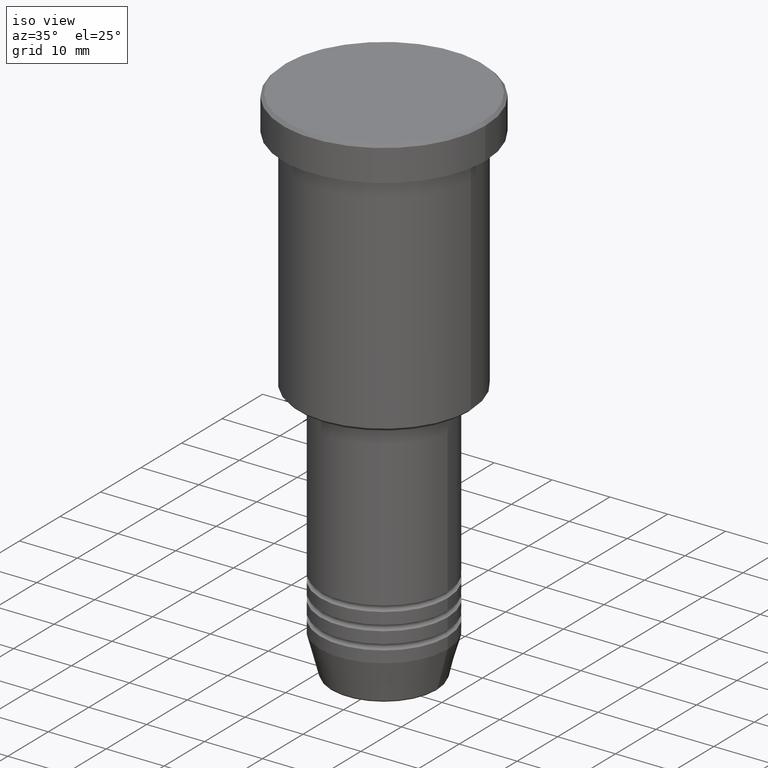
[diagram: clean part render]
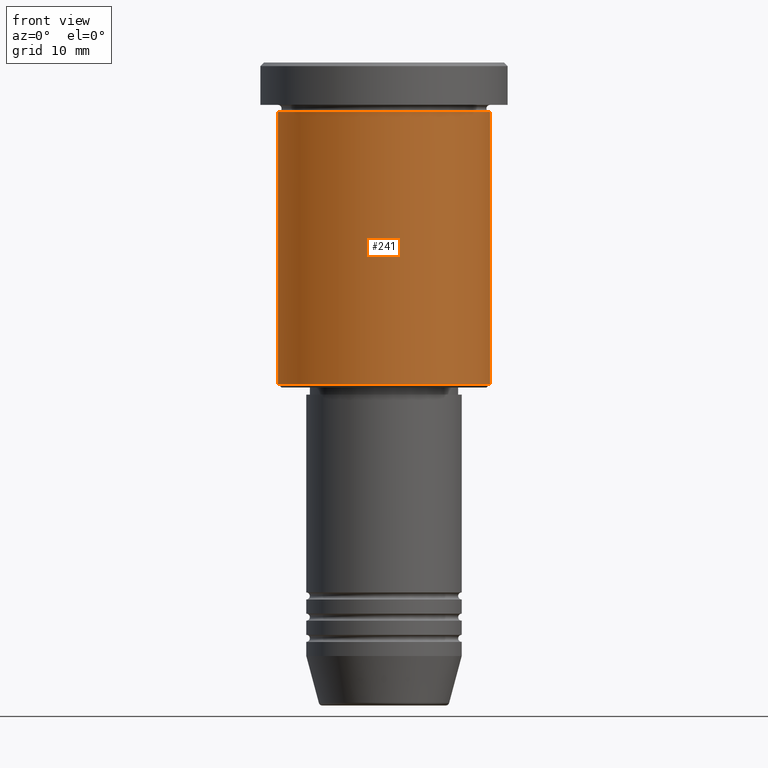
[diagram: tour spotlight — one face highlighted and labeled with its STEP entity id]
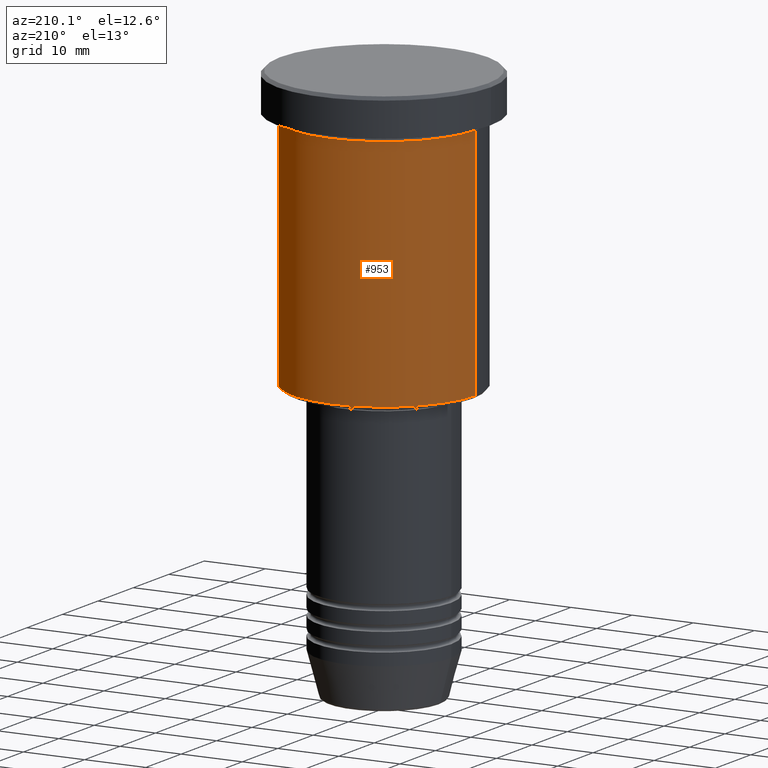
[diagram: tour spotlight — one face highlighted and labeled with its STEP entity id]
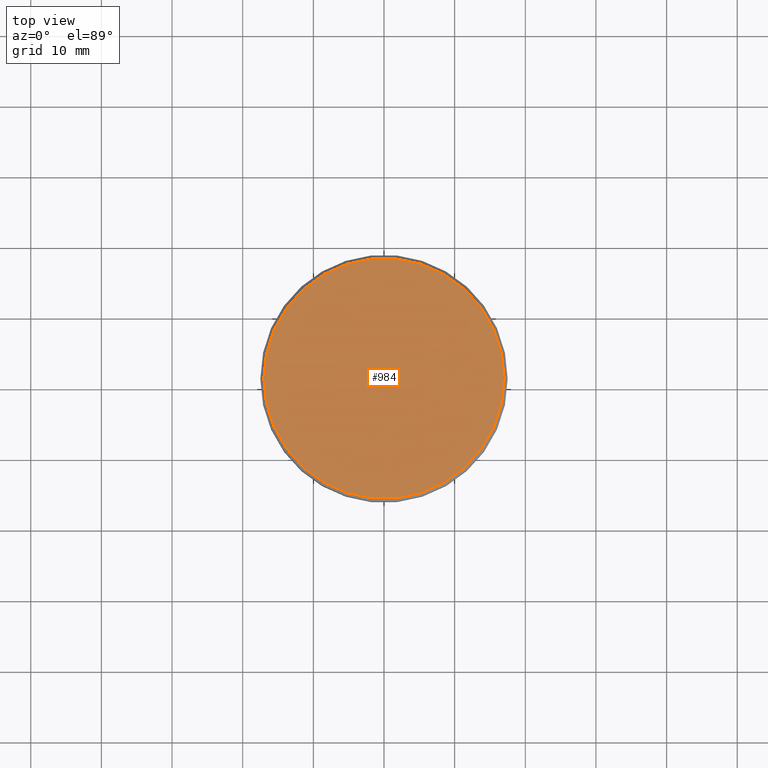
[diagram: tour spotlight — one face highlighted and labeled with its STEP entity id]
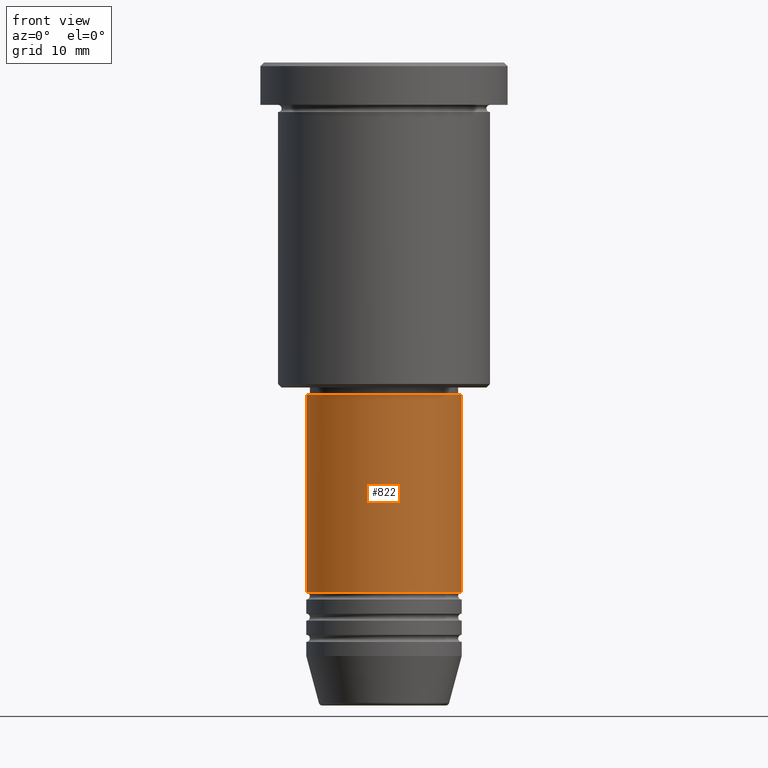
[diagram: tour spotlight — one face highlighted and labeled with its STEP entity id]
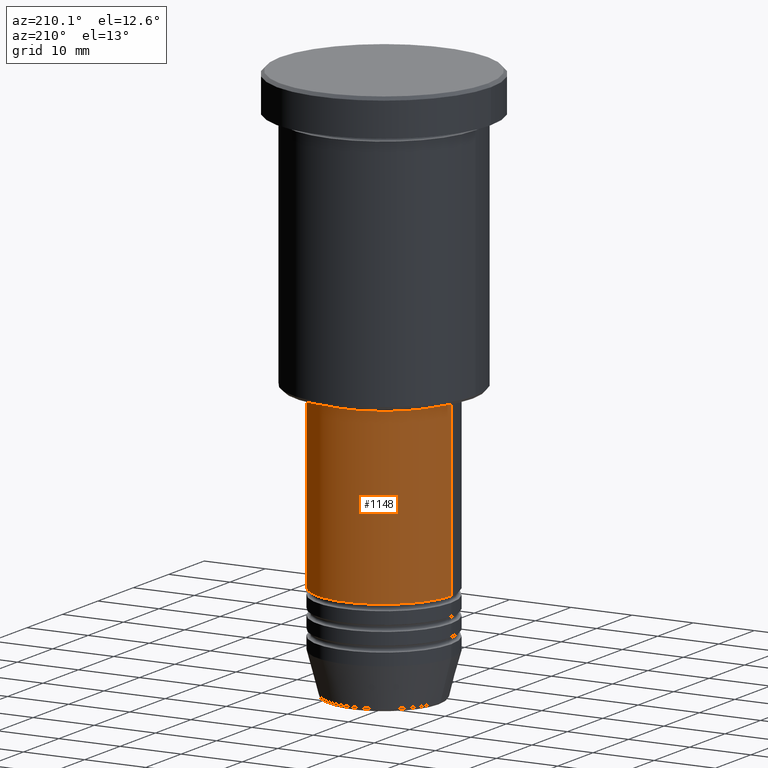
[diagram: tour spotlight — one face highlighted and labeled with its STEP entity id]
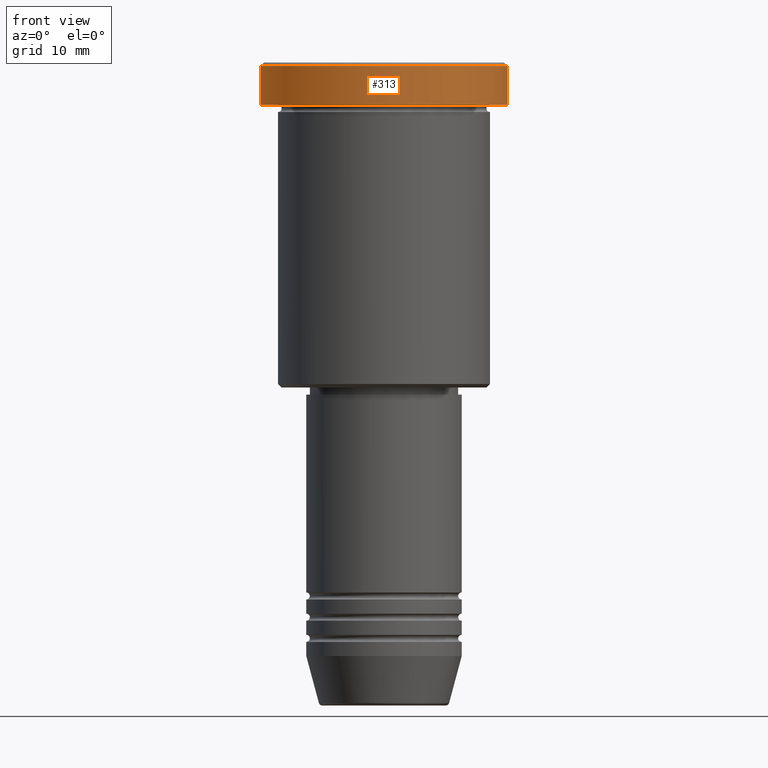
[diagram: tour spotlight — one face highlighted and labeled with its STEP entity id]
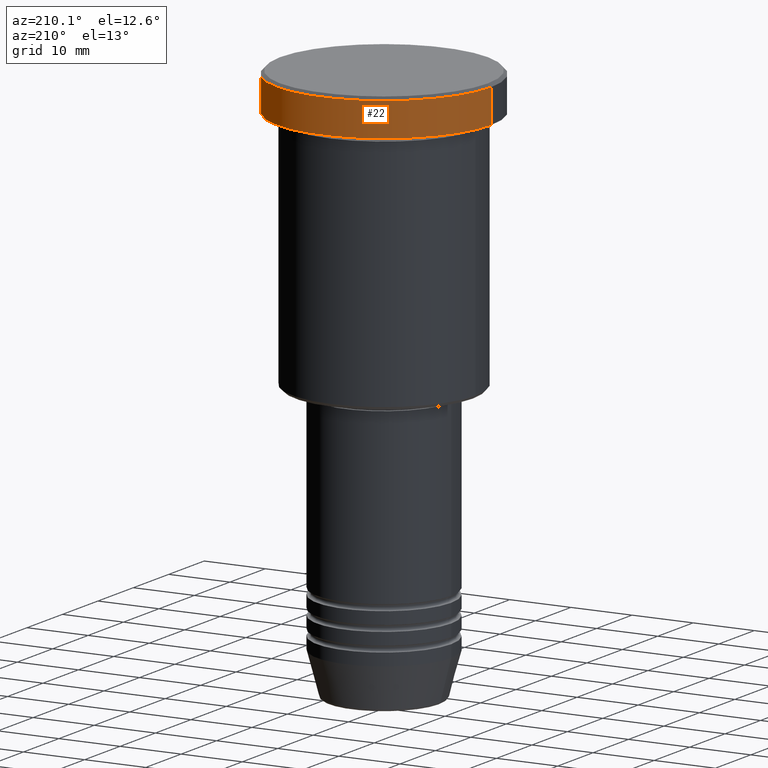
[diagram: tour spotlight — one face highlighted and labeled with its STEP entity id]
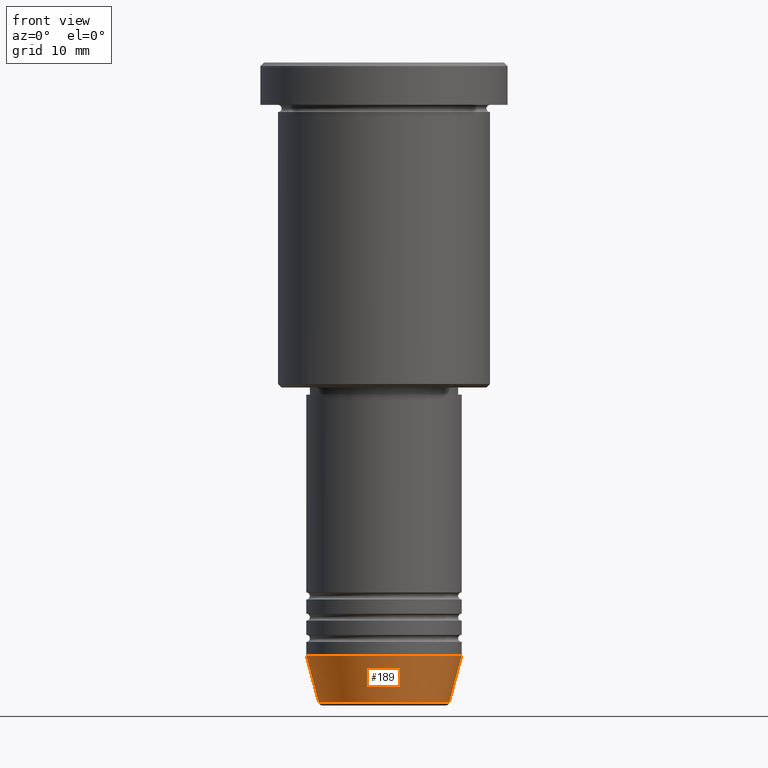
[diagram: tour spotlight — one face highlighted and labeled with its STEP entity id]
A machine part: a face-by-face anatomy tour. The part has 43 B-rep faces; the first image is the clean iso view, then the 8 largest visible faces are spotlighted one at a time (largest first), each with its STEP entity span.

Face 1 — front view, entity #241. In plain terms, the highlighted cylindrical surface (partial cylindrical patch) has radius 15 mm, axis along (-0, -0, 1).
Definition (entity closure, byte-faithful):
#15 = EDGE_CURVE ( 'NONE', #1042, #636, #150, .T. ) ;
#33 = CARTESIAN_POINT ( 'NONE',  ( -15.00000000000000000, 1.836970198721029589E-15, -6.999999999999995559 ) ) ;
#40 = VECTOR ( 'NONE', #126, 1000.000000000000000 ) ;
#126 = DIRECTION ( 'NONE',  ( -0.000000000000000000, -0.000000000000000000, 1.000000000000000000 ) ) ;
#150 = LINE ( 'NONE', #823, #284 ) ;
#213 = DIRECTION ( 'NONE',  ( -0.000000000000000000, -0.000000000000000000, 1.000000000000000000 ) ) ;
#233 = ORIENTED_EDGE ( 'NONE', *, *, #623, .T. ) ;
#241 = ADVANCED_FACE ( 'NONE', ( #740 ), #1040, .T. ) ;
#284 = VECTOR ( 'NONE', #1084, 1000.000000000000000 ) ;
#387 = AXIS2_PLACEMENT_3D ( 'NONE', #1136, #213, #689 ) ;
#411 = CIRCLE ( 'NONE', #1036, 15.00000000000000000 ) ;
#463 = DIRECTION ( 'NONE',  ( 1.000000000000000000, 0.000000000000000000, 0.000000000000000000 ) ) ;
#474 = DIRECTION ( 'NONE',  ( -0.000000000000000000, -0.000000000000000000, 1.000000000000000000 ) ) ;
#489 = CARTESIAN_POINT ( 'NONE',  ( 15.00000000000000000, 0.000000000000000000, -45.49999999999999289 ) ) ;
#528 = EDGE_LOOP ( 'NONE', ( #859, #560, #233, #730 ) ) ;
#547 = EDGE_CURVE ( 'NONE', #636, #1146, #1023, .T. ) ;
#560 = ORIENTED_EDGE ( 'NONE', *, *, #1067, .T. ) ;
#583 = CARTESIAN_POINT ( 'NONE',  ( 15.00000000000000000, 0.000000000000000000, -6.999999999999995559 ) ) ;
#591 = CARTESIAN_POINT ( 'NONE',  ( 15.00000000000000000, 0.000000000000000000, 0.000000000000000000 ) ) ;
#623 = EDGE_CURVE ( 'NONE', #718, #1146, #951, .T. ) ;
#636 = VERTEX_POINT ( 'NONE', #33 ) ;
#689 = DIRECTION ( 'NONE',  ( 1.000000000000000000, 0.000000000000000000, 0.000000000000000000 ) ) ;
#718 = VERTEX_POINT ( 'NONE', #489 ) ;
#730 = ORIENTED_EDGE ( 'NONE', *, *, #547, .F. ) ;
#740 = FACE_OUTER_BOUND ( 'NONE', #528, .T. ) ;
#823 = CARTESIAN_POINT ( 'NONE',  ( -15.00000000000000000, 1.836970198721029589E-15, 0.000000000000000000 ) ) ;
#842 = DIRECTION ( 'NONE',  ( -1.000000000000000000, 0.000000000000000000, 0.000000000000000000 ) ) ;
#859 = ORIENTED_EDGE ( 'NONE', *, *, #15, .F. ) ;
#922 = CARTESIAN_POINT ( 'NONE',  ( 0.000000000000000000, 0.000000000000000000, -6.999999999999995559 ) ) ;
#941 = CARTESIAN_POINT ( 'NONE',  ( -15.00000000000000000, 1.836970198721029589E-15, -45.49999999999999289 ) ) ;
#951 = LINE ( 'NONE', #591, #40 ) ;
#964 = AXIS2_PLACEMENT_3D ( 'NONE', #922, #1099, #463 ) ;
#1023 = CIRCLE ( 'NONE', #964, 15.00000000000000000 ) ;
#1036 = AXIS2_PLACEMENT_3D ( 'NONE', #1118, #474, #842 ) ;
#1040 = CYLINDRICAL_SURFACE ( 'NONE', #387, 15.00000000000000000 ) ;
#1042 = VERTEX_POINT ( 'NONE', #941 ) ;
#1067 = EDGE_CURVE ( 'NONE', #1042, #718, #411, .T. ) ;
#1084 = DIRECTION ( 'NONE',  ( -0.000000000000000000, -0.000000000000000000, 1.000000000000000000 ) ) ;
#1099 = DIRECTION ( 'NONE',  ( -0.000000000000000000, -0.000000000000000000, 1.000000000000000000 ) ) ;
#1118 = CARTESIAN_POINT ( 'NONE',  ( 0.000000000000000000, 0.000000000000000000, -45.49999999999999289 ) ) ;
#1136 = CARTESIAN_POINT ( 'NONE',  ( 0.000000000000000000, 0.000000000000000000, 0.000000000000000000 ) ) ;
#1146 = VERTEX_POINT ( 'NONE', #583 ) ;

Face 2 — auxiliary view, entity #953. In plain terms, the highlighted cylindrical surface (partial cylindrical patch) has radius 15 mm, axis along (-0, -0, 1).
Definition (entity closure, byte-faithful):
#15 = EDGE_CURVE ( 'NONE', #1042, #636, #150, .T. ) ;
#33 = CARTESIAN_POINT ( 'NONE',  ( -15.00000000000000000, 1.836970198721029589E-15, -6.999999999999995559 ) ) ;
#40 = VECTOR ( 'NONE', #126, 1000.000000000000000 ) ;
#118 = AXIS2_PLACEMENT_3D ( 'NONE', #724, #253, #1081 ) ;
#126 = DIRECTION ( 'NONE',  ( -0.000000000000000000, -0.000000000000000000, 1.000000000000000000 ) ) ;
#150 = LINE ( 'NONE', #823, #284 ) ;
#163 = CARTESIAN_POINT ( 'NONE',  ( 0.000000000000000000, 0.000000000000000000, -6.999999999999995559 ) ) ;
#195 = FACE_OUTER_BOUND ( 'NONE', #227, .T. ) ;
#227 = EDGE_LOOP ( 'NONE', ( #902, #737, #268, #440 ) ) ;
#253 = DIRECTION ( 'NONE',  ( -0.000000000000000000, -0.000000000000000000, 1.000000000000000000 ) ) ;
#268 = ORIENTED_EDGE ( 'NONE', *, *, #1165, .F. ) ;
#269 = CYLINDRICAL_SURFACE ( 'NONE', #392, 15.00000000000000000 ) ;
#284 = VECTOR ( 'NONE', #1084, 1000.000000000000000 ) ;
#326 = EDGE_CURVE ( 'NONE', #718, #1042, #1112, .T. ) ;
#392 = AXIS2_PLACEMENT_3D ( 'NONE', #911, #747, #568 ) ;
#433 = DIRECTION ( 'NONE',  ( -0.000000000000000000, -0.000000000000000000, 1.000000000000000000 ) ) ;
#440 = ORIENTED_EDGE ( 'NONE', *, *, #623, .F. ) ;
#489 = CARTESIAN_POINT ( 'NONE',  ( 15.00000000000000000, 0.000000000000000000, -45.49999999999999289 ) ) ;
#533 = DIRECTION ( 'NONE',  ( 1.000000000000000000, 0.000000000000000000, 0.000000000000000000 ) ) ;
#568 = DIRECTION ( 'NONE',  ( 1.000000000000000000, 0.000000000000000000, 0.000000000000000000 ) ) ;
#583 = CARTESIAN_POINT ( 'NONE',  ( 15.00000000000000000, 0.000000000000000000, -6.999999999999995559 ) ) ;
#591 = CARTESIAN_POINT ( 'NONE',  ( 15.00000000000000000, 0.000000000000000000, 0.000000000000000000 ) ) ;
#623 = EDGE_CURVE ( 'NONE', #718, #1146, #951, .T. ) ;
#636 = VERTEX_POINT ( 'NONE', #33 ) ;
#718 = VERTEX_POINT ( 'NONE', #489 ) ;
#724 = CARTESIAN_POINT ( 'NONE',  ( 0.000000000000000000, 0.000000000000000000, -45.49999999999999289 ) ) ;
#737 = ORIENTED_EDGE ( 'NONE', *, *, #15, .T. ) ;
#746 = AXIS2_PLACEMENT_3D ( 'NONE', #163, #433, #533 ) ;
#747 = DIRECTION ( 'NONE',  ( -0.000000000000000000, -0.000000000000000000, 1.000000000000000000 ) ) ;
#823 = CARTESIAN_POINT ( 'NONE',  ( -15.00000000000000000, 1.836970198721029589E-15, 0.000000000000000000 ) ) ;
#878 = CIRCLE ( 'NONE', #746, 15.00000000000000000 ) ;
#902 = ORIENTED_EDGE ( 'NONE', *, *, #326, .T. ) ;
#911 = CARTESIAN_POINT ( 'NONE',  ( 0.000000000000000000, 0.000000000000000000, 0.000000000000000000 ) ) ;
#941 = CARTESIAN_POINT ( 'NONE',  ( -15.00000000000000000, 1.836970198721029589E-15, -45.49999999999999289 ) ) ;
#951 = LINE ( 'NONE', #591, #40 ) ;
#953 = ADVANCED_FACE ( 'NONE', ( #195 ), #269, .T. ) ;
#1042 = VERTEX_POINT ( 'NONE', #941 ) ;
#1081 = DIRECTION ( 'NONE',  ( -1.000000000000000000, 0.000000000000000000, 0.000000000000000000 ) ) ;
#1084 = DIRECTION ( 'NONE',  ( -0.000000000000000000, -0.000000000000000000, 1.000000000000000000 ) ) ;
#1112 = CIRCLE ( 'NONE', #118, 15.00000000000000000 ) ;
#1146 = VERTEX_POINT ( 'NONE', #583 ) ;
#1165 = EDGE_CURVE ( 'NONE', #1146, #636, #878, .T. ) ;

Face 3 — top view, entity #984. In plain terms, the highlighted planar face has unit normal (0, -0, 1).
Definition (entity closure, byte-faithful):
#9 = AXIS2_PLACEMENT_3D ( 'NONE', #293, #16, #571 ) ;
#13 = PLANE ( 'NONE',  #274 ) ;
#16 = DIRECTION ( 'NONE',  ( -0.000000000000000000, -0.000000000000000000, 1.000000000000000000 ) ) ;
#53 = EDGE_CURVE ( 'NONE', #490, #703, #931, .T. ) ;
#55 = CARTESIAN_POINT ( 'NONE',  ( 0.000000000000000000, 0.000000000000000000, 0.000000000000000000 ) ) ;
#100 = DIRECTION ( 'NONE',  ( 0.000000000000000000, -0.000000000000000000, 1.000000000000000000 ) ) ;
#112 = CARTESIAN_POINT ( 'NONE',  ( 17.00000000000000000, 2.112515728529184067E-15, 0.000000000000000000 ) ) ;
#183 = AXIS2_PLACEMENT_3D ( 'NONE', #55, #799, #1172 ) ;
#190 = FACE_OUTER_BOUND ( 'NONE', #214, .T. ) ;
#214 = EDGE_LOOP ( 'NONE', ( #673, #1171 ) ) ;
#274 = AXIS2_PLACEMENT_3D ( 'NONE', #561, #100, #645 ) ;
#293 = CARTESIAN_POINT ( 'NONE',  ( 0.000000000000000000, 0.000000000000000000, 0.000000000000000000 ) ) ;
#490 = VERTEX_POINT ( 'NONE', #1182 ) ;
#561 = CARTESIAN_POINT ( 'NONE',  ( 0.000000000000000000, 0.000000000000000000, 0.000000000000000000 ) ) ;
#571 = DIRECTION ( 'NONE',  ( 1.000000000000000000, 0.000000000000000000, 0.000000000000000000 ) ) ;
#645 = DIRECTION ( 'NONE',  ( 1.000000000000000000, 0.000000000000000000, 0.000000000000000000 ) ) ;
#673 = ORIENTED_EDGE ( 'NONE', *, *, #53, .T. ) ;
#703 = VERTEX_POINT ( 'NONE', #112 ) ;
#799 = DIRECTION ( 'NONE',  ( -0.000000000000000000, -0.000000000000000000, 1.000000000000000000 ) ) ;
#877 = CIRCLE ( 'NONE', #9, 17.00000000000000000 ) ;
#931 = CIRCLE ( 'NONE', #183, 17.00000000000000000 ) ;
#984 = ADVANCED_FACE ( 'NONE', ( #190 ), #13, .T. ) ;
#1100 = EDGE_CURVE ( 'NONE', #703, #490, #877, .T. ) ;
#1171 = ORIENTED_EDGE ( 'NONE', *, *, #1100, .T. ) ;
#1172 = DIRECTION ( 'NONE',  ( 1.000000000000000000, 0.000000000000000000, 0.000000000000000000 ) ) ;
#1182 = CARTESIAN_POINT ( 'NONE',  ( -17.00000000000000000, 0.000000000000000000, 0.000000000000000000 ) ) ;

Face 4 — front view, entity #822. In plain terms, the highlighted cylindrical surface (partial cylindrical patch) has radius 11 mm, axis along (-0, -0, 1).
Definition (entity closure, byte-faithful):
#2 = LINE ( 'NONE', #106, #605 ) ;
#24 = VECTOR ( 'NONE', #890, 1000.000000000000000 ) ;
#51 = DIRECTION ( 'NONE',  ( -0.000000000000000000, -0.000000000000000000, 1.000000000000000000 ) ) ;
#71 = LINE ( 'NONE', #1057, #24 ) ;
#106 = CARTESIAN_POINT ( 'NONE',  ( 11.00000000000000000, 0.000000000000000000, 0.000000000000000000 ) ) ;
#156 = DIRECTION ( 'NONE',  ( 1.000000000000000000, 0.000000000000000000, 0.000000000000000000 ) ) ;
#157 = EDGE_LOOP ( 'NONE', ( #564, #252, #860, #962 ) ) ;
#187 = DIRECTION ( 'NONE',  ( 1.000000000000000000, 0.000000000000000000, 0.000000000000000000 ) ) ;
#221 = DIRECTION ( 'NONE',  ( -0.000000000000000000, -0.000000000000000000, 1.000000000000000000 ) ) ;
#234 = CARTESIAN_POINT ( 'NONE',  ( -11.00000000000000000, 1.347111479062088405E-15, -46.99999999999997158 ) ) ;
#249 = VERTEX_POINT ( 'NONE', #418 ) ;
#252 = ORIENTED_EDGE ( 'NONE', *, *, #989, .T. ) ;
#359 = DIRECTION ( 'NONE',  ( -0.000000000000000000, -0.000000000000000000, 1.000000000000000000 ) ) ;
#378 = VERTEX_POINT ( 'NONE', #234 ) ;
#380 = CARTESIAN_POINT ( 'NONE',  ( 0.000000000000000000, 0.000000000000000000, -74.99999999999997158 ) ) ;
#418 = CARTESIAN_POINT ( 'NONE',  ( 11.00000000000000000, 0.000000000000000000, -46.99999999999997158 ) ) ;
#550 = AXIS2_PLACEMENT_3D ( 'NONE', #1017, #926, #187 ) ;
#564 = ORIENTED_EDGE ( 'NONE', *, *, #810, .F. ) ;
#567 = AXIS2_PLACEMENT_3D ( 'NONE', #380, #359, #729 ) ;
#605 = VECTOR ( 'NONE', #221, 1000.000000000000000 ) ;
#617 = CARTESIAN_POINT ( 'NONE',  ( 0.000000000000000000, 0.000000000000000000, 0.000000000000000000 ) ) ;
#630 = CIRCLE ( 'NONE', #567, 11.00000000000000000 ) ;
#641 = VERTEX_POINT ( 'NONE', #957 ) ;
#677 = VERTEX_POINT ( 'NONE', #1135 ) ;
#725 = CIRCLE ( 'NONE', #550, 11.00000000000000000 ) ;
#729 = DIRECTION ( 'NONE',  ( 1.000000000000000000, 0.000000000000000000, 0.000000000000000000 ) ) ;
#810 = EDGE_CURVE ( 'NONE', #641, #378, #71, .T. ) ;
#813 = CYLINDRICAL_SURFACE ( 'NONE', #821, 11.00000000000000000 ) ;
#821 = AXIS2_PLACEMENT_3D ( 'NONE', #617, #51, #156 ) ;
#822 = ADVANCED_FACE ( 'NONE', ( #884 ), #813, .T. ) ;
#860 = ORIENTED_EDGE ( 'NONE', *, *, #1015, .T. ) ;
#884 = FACE_OUTER_BOUND ( 'NONE', #157, .T. ) ;
#890 = DIRECTION ( 'NONE',  ( -0.000000000000000000, -0.000000000000000000, 1.000000000000000000 ) ) ;
#926 = DIRECTION ( 'NONE',  ( -0.000000000000000000, -0.000000000000000000, 1.000000000000000000 ) ) ;
#933 = EDGE_CURVE ( 'NONE', #378, #249, #725, .T. ) ;
#957 = CARTESIAN_POINT ( 'NONE',  ( -11.00000000000000000, 1.347111479062088405E-15, -74.99999999999997158 ) ) ;
#962 = ORIENTED_EDGE ( 'NONE', *, *, #933, .F. ) ;
#989 = EDGE_CURVE ( 'NONE', #641, #677, #630, .T. ) ;
#1015 = EDGE_CURVE ( 'NONE', #677, #249, #2, .T. ) ;
#1017 = CARTESIAN_POINT ( 'NONE',  ( 0.000000000000000000, 0.000000000000000000, -46.99999999999997158 ) ) ;
#1057 = CARTESIAN_POINT ( 'NONE',  ( -11.00000000000000000, 1.347111479062088405E-15, 0.000000000000000000 ) ) ;
#1135 = CARTESIAN_POINT ( 'NONE',  ( 11.00000000000000000, 0.000000000000000000, -74.99999999999997158 ) ) ;

Face 5 — auxiliary view, entity #1148. In plain terms, the highlighted cylindrical surface (partial cylindrical patch) has radius 11 mm, axis along (-0, -0, 1).
Definition (entity closure, byte-faithful):
#2 = LINE ( 'NONE', #106, #605 ) ;
#21 = AXIS2_PLACEMENT_3D ( 'NONE', #1111, #288, #956 ) ;
#24 = VECTOR ( 'NONE', #890, 1000.000000000000000 ) ;
#25 = ORIENTED_EDGE ( 'NONE', *, *, #1015, .F. ) ;
#70 = DIRECTION ( 'NONE',  ( -0.000000000000000000, -0.000000000000000000, 1.000000000000000000 ) ) ;
#71 = LINE ( 'NONE', #1057, #24 ) ;
#106 = CARTESIAN_POINT ( 'NONE',  ( 11.00000000000000000, 0.000000000000000000, 0.000000000000000000 ) ) ;
#138 = CIRCLE ( 'NONE', #21, 11.00000000000000000 ) ;
#169 = EDGE_CURVE ( 'NONE', #677, #641, #138, .T. ) ;
#177 = ORIENTED_EDGE ( 'NONE', *, *, #810, .T. ) ;
#221 = DIRECTION ( 'NONE',  ( -0.000000000000000000, -0.000000000000000000, 1.000000000000000000 ) ) ;
#228 = DIRECTION ( 'NONE',  ( 1.000000000000000000, 0.000000000000000000, 0.000000000000000000 ) ) ;
#234 = CARTESIAN_POINT ( 'NONE',  ( -11.00000000000000000, 1.347111479062088405E-15, -46.99999999999997158 ) ) ;
#249 = VERTEX_POINT ( 'NONE', #418 ) ;
#260 = EDGE_CURVE ( 'NONE', #249, #378, #329, .T. ) ;
#288 = DIRECTION ( 'NONE',  ( -0.000000000000000000, -0.000000000000000000, 1.000000000000000000 ) ) ;
#305 = FACE_OUTER_BOUND ( 'NONE', #594, .T. ) ;
#322 = CARTESIAN_POINT ( 'NONE',  ( 0.000000000000000000, 0.000000000000000000, -46.99999999999997158 ) ) ;
#329 = CIRCLE ( 'NONE', #483, 11.00000000000000000 ) ;
#366 = DIRECTION ( 'NONE',  ( -0.000000000000000000, -0.000000000000000000, 1.000000000000000000 ) ) ;
#378 = VERTEX_POINT ( 'NONE', #234 ) ;
#418 = CARTESIAN_POINT ( 'NONE',  ( 11.00000000000000000, 0.000000000000000000, -46.99999999999997158 ) ) ;
#454 = DIRECTION ( 'NONE',  ( 1.000000000000000000, 0.000000000000000000, 0.000000000000000000 ) ) ;
#483 = AXIS2_PLACEMENT_3D ( 'NONE', #322, #366, #454 ) ;
#589 = CYLINDRICAL_SURFACE ( 'NONE', #701, 11.00000000000000000 ) ;
#594 = EDGE_LOOP ( 'NONE', ( #871, #177, #1087, #25 ) ) ;
#605 = VECTOR ( 'NONE', #221, 1000.000000000000000 ) ;
#641 = VERTEX_POINT ( 'NONE', #957 ) ;
#677 = VERTEX_POINT ( 'NONE', #1135 ) ;
#701 = AXIS2_PLACEMENT_3D ( 'NONE', #954, #70, #228 ) ;
#810 = EDGE_CURVE ( 'NONE', #641, #378, #71, .T. ) ;
#871 = ORIENTED_EDGE ( 'NONE', *, *, #169, .T. ) ;
#890 = DIRECTION ( 'NONE',  ( -0.000000000000000000, -0.000000000000000000, 1.000000000000000000 ) ) ;
#954 = CARTESIAN_POINT ( 'NONE',  ( 0.000000000000000000, 0.000000000000000000, 0.000000000000000000 ) ) ;
#956 = DIRECTION ( 'NONE',  ( 1.000000000000000000, 0.000000000000000000, 0.000000000000000000 ) ) ;
#957 = CARTESIAN_POINT ( 'NONE',  ( -11.00000000000000000, 1.347111479062088405E-15, -74.99999999999997158 ) ) ;
#1015 = EDGE_CURVE ( 'NONE', #677, #249, #2, .T. ) ;
#1057 = CARTESIAN_POINT ( 'NONE',  ( -11.00000000000000000, 1.347111479062088405E-15, 0.000000000000000000 ) ) ;
#1087 = ORIENTED_EDGE ( 'NONE', *, *, #260, .F. ) ;
#1111 = CARTESIAN_POINT ( 'NONE',  ( 0.000000000000000000, 0.000000000000000000, -74.99999999999997158 ) ) ;
#1135 = CARTESIAN_POINT ( 'NONE',  ( 11.00000000000000000, 0.000000000000000000, -74.99999999999997158 ) ) ;
#1148 = ADVANCED_FACE ( 'NONE', ( #305 ), #589, .T. ) ;

Face 6 — front view, entity #313. In plain terms, the highlighted cylindrical surface (partial cylindrical patch) has radius 17.5 mm, axis along (-0, -0, 1).
Definition (entity closure, byte-faithful):
#52 = DIRECTION ( 'NONE',  ( 1.000000000000000000, 0.000000000000000000, 0.000000000000000000 ) ) ;
#101 = VECTOR ( 'NONE', #335, 1000.000000000000000 ) ;
#121 = ORIENTED_EDGE ( 'NONE', *, *, #572, .F. ) ;
#154 = CARTESIAN_POINT ( 'NONE',  ( 0.000000000000000000, 0.000000000000000000, -0.5000000000000142109 ) ) ;
#166 = CARTESIAN_POINT ( 'NONE',  ( 0.000000000000000000, 0.000000000000000000, 0.000000000000000000 ) ) ;
#205 = CARTESIAN_POINT ( 'NONE',  ( -17.50000000000000000, 2.143131898507868248E-15, 0.000000000000000000 ) ) ;
#216 = VERTEX_POINT ( 'NONE', #830 ) ;
#297 = ORIENTED_EDGE ( 'NONE', *, *, #1035, .T. ) ;
#298 = DIRECTION ( 'NONE',  ( -0.000000000000000000, -0.000000000000000000, 1.000000000000000000 ) ) ;
#313 = ADVANCED_FACE ( 'NONE', ( #709 ), #344, .T. ) ;
#335 = DIRECTION ( 'NONE',  ( -0.000000000000000000, -0.000000000000000000, 1.000000000000000000 ) ) ;
#344 = CYLINDRICAL_SURFACE ( 'NONE', #1152, 17.50000000000000000 ) ;
#410 = EDGE_CURVE ( 'NONE', #696, #639, #1129, .T. ) ;
#449 = ORIENTED_EDGE ( 'NONE', *, *, #410, .T. ) ;
#522 = DIRECTION ( 'NONE',  ( 0.000000000000000000, 0.000000000000000000, -1.000000000000000000 ) ) ;
#525 = CARTESIAN_POINT ( 'NONE',  ( 17.50000000000000000, 0.000000000000000000, 0.000000000000000000 ) ) ;
#572 = EDGE_CURVE ( 'NONE', #216, #639, #1102, .T. ) ;
#581 = EDGE_LOOP ( 'NONE', ( #121, #297, #674, #449 ) ) ;
#603 = CARTESIAN_POINT ( 'NONE',  ( 17.50000000000000000, 0.000000000000000000, -5.999999999999995559 ) ) ;
#626 = AXIS2_PLACEMENT_3D ( 'NONE', #154, #522, #891 ) ;
#639 = VERTEX_POINT ( 'NONE', #1113 ) ;
#674 = ORIENTED_EDGE ( 'NONE', *, *, #751, .T. ) ;
#696 = VERTEX_POINT ( 'NONE', #1027 ) ;
#709 = FACE_OUTER_BOUND ( 'NONE', #581, .T. ) ;
#751 = EDGE_CURVE ( 'NONE', #797, #696, #796, .T. ) ;
#783 = CARTESIAN_POINT ( 'NONE',  ( 0.000000000000000000, 0.000000000000000000, -5.999999999999995559 ) ) ;
#796 = LINE ( 'NONE', #525, #101 ) ;
#797 = VERTEX_POINT ( 'NONE', #603 ) ;
#830 = CARTESIAN_POINT ( 'NONE',  ( -17.50000000000000000, 2.143131898507868248E-15, -5.999999999999995559 ) ) ;
#858 = DIRECTION ( 'NONE',  ( -0.000000000000000000, -0.000000000000000000, 1.000000000000000000 ) ) ;
#891 = DIRECTION ( 'NONE',  ( 1.000000000000000000, 0.000000000000000000, 0.000000000000000000 ) ) ;
#970 = DIRECTION ( 'NONE',  ( -0.000000000000000000, -0.000000000000000000, 1.000000000000000000 ) ) ;
#986 = CIRCLE ( 'NONE', #1053, 17.50000000000000000 ) ;
#1027 = CARTESIAN_POINT ( 'NONE',  ( 17.50000000000000000, 0.000000000000000000, -0.5000000000000142109 ) ) ;
#1035 = EDGE_CURVE ( 'NONE', #216, #797, #986, .T. ) ;
#1043 = DIRECTION ( 'NONE',  ( 1.000000000000000000, 0.000000000000000000, 0.000000000000000000 ) ) ;
#1052 = VECTOR ( 'NONE', #858, 1000.000000000000000 ) ;
#1053 = AXIS2_PLACEMENT_3D ( 'NONE', #783, #298, #1043 ) ;
#1102 = LINE ( 'NONE', #205, #1052 ) ;
#1113 = CARTESIAN_POINT ( 'NONE',  ( -17.50000000000000000, 2.143131898507868248E-15, -0.5000000000000142109 ) ) ;
#1129 = CIRCLE ( 'NONE', #626, 17.50000000000000000 ) ;
#1152 = AXIS2_PLACEMENT_3D ( 'NONE', #166, #970, #52 ) ;

Face 7 — auxiliary view, entity #22. In plain terms, the highlighted cylindrical surface (partial cylindrical patch) has radius 17.5 mm, axis along (-0, -0, 1).
Definition (entity closure, byte-faithful):
#12 = DIRECTION ( 'NONE',  ( 0.000000000000000000, 0.000000000000000000, -1.000000000000000000 ) ) ;
#22 = ADVANCED_FACE ( 'NONE', ( #1075 ), #168, .T. ) ;
#101 = VECTOR ( 'NONE', #335, 1000.000000000000000 ) ;
#168 = CYLINDRICAL_SURFACE ( 'NONE', #290, 17.50000000000000000 ) ;
#205 = CARTESIAN_POINT ( 'NONE',  ( -17.50000000000000000, 2.143131898507868248E-15, 0.000000000000000000 ) ) ;
#216 = VERTEX_POINT ( 'NONE', #830 ) ;
#229 = EDGE_CURVE ( 'NONE', #639, #696, #285, .T. ) ;
#232 = AXIS2_PLACEMENT_3D ( 'NONE', #1108, #12, #552 ) ;
#257 = CARTESIAN_POINT ( 'NONE',  ( 0.000000000000000000, 0.000000000000000000, 0.000000000000000000 ) ) ;
#259 = DIRECTION ( 'NONE',  ( 1.000000000000000000, 0.000000000000000000, 0.000000000000000000 ) ) ;
#285 = CIRCLE ( 'NONE', #232, 17.50000000000000000 ) ;
#290 = AXIS2_PLACEMENT_3D ( 'NONE', #257, #633, #905 ) ;
#324 = EDGE_LOOP ( 'NONE', ( #959, #958, #914, #691 ) ) ;
#335 = DIRECTION ( 'NONE',  ( -0.000000000000000000, -0.000000000000000000, 1.000000000000000000 ) ) ;
#397 = EDGE_CURVE ( 'NONE', #797, #216, #1173, .T. ) ;
#428 = AXIS2_PLACEMENT_3D ( 'NONE', #517, #614, #259 ) ;
#517 = CARTESIAN_POINT ( 'NONE',  ( 0.000000000000000000, 0.000000000000000000, -5.999999999999995559 ) ) ;
#525 = CARTESIAN_POINT ( 'NONE',  ( 17.50000000000000000, 0.000000000000000000, 0.000000000000000000 ) ) ;
#552 = DIRECTION ( 'NONE',  ( 1.000000000000000000, 0.000000000000000000, 0.000000000000000000 ) ) ;
#572 = EDGE_CURVE ( 'NONE', #216, #639, #1102, .T. ) ;
#603 = CARTESIAN_POINT ( 'NONE',  ( 17.50000000000000000, 0.000000000000000000, -5.999999999999995559 ) ) ;
#614 = DIRECTION ( 'NONE',  ( -0.000000000000000000, -0.000000000000000000, 1.000000000000000000 ) ) ;
#633 = DIRECTION ( 'NONE',  ( -0.000000000000000000, -0.000000000000000000, 1.000000000000000000 ) ) ;
#639 = VERTEX_POINT ( 'NONE', #1113 ) ;
#691 = ORIENTED_EDGE ( 'NONE', *, *, #751, .F. ) ;
#696 = VERTEX_POINT ( 'NONE', #1027 ) ;
#751 = EDGE_CURVE ( 'NONE', #797, #696, #796, .T. ) ;
#796 = LINE ( 'NONE', #525, #101 ) ;
#797 = VERTEX_POINT ( 'NONE', #603 ) ;
#830 = CARTESIAN_POINT ( 'NONE',  ( -17.50000000000000000, 2.143131898507868248E-15, -5.999999999999995559 ) ) ;
#858 = DIRECTION ( 'NONE',  ( -0.000000000000000000, -0.000000000000000000, 1.000000000000000000 ) ) ;
#905 = DIRECTION ( 'NONE',  ( 1.000000000000000000, 0.000000000000000000, 0.000000000000000000 ) ) ;
#914 = ORIENTED_EDGE ( 'NONE', *, *, #229, .T. ) ;
#958 = ORIENTED_EDGE ( 'NONE', *, *, #572, .T. ) ;
#959 = ORIENTED_EDGE ( 'NONE', *, *, #397, .T. ) ;
#1027 = CARTESIAN_POINT ( 'NONE',  ( 17.50000000000000000, 0.000000000000000000, -0.5000000000000142109 ) ) ;
#1052 = VECTOR ( 'NONE', #858, 1000.000000000000000 ) ;
#1075 = FACE_OUTER_BOUND ( 'NONE', #324, .T. ) ;
#1102 = LINE ( 'NONE', #205, #1052 ) ;
#1108 = CARTESIAN_POINT ( 'NONE',  ( 0.000000000000000000, 0.000000000000000000, -0.5000000000000142109 ) ) ;
#1113 = CARTESIAN_POINT ( 'NONE',  ( -17.50000000000000000, 2.143131898507868248E-15, -0.5000000000000142109 ) ) ;
#1173 = CIRCLE ( 'NONE', #428, 17.50000000000000000 ) ;

Face 8 — front view, entity #189. In plain terms, the highlighted conical surface has half-angle 15 deg.
Definition (entity closure, byte-faithful):
#5 = AXIS2_PLACEMENT_3D ( 'NONE', #171, #886, #541 ) ;
#77 = ORIENTED_EDGE ( 'NONE', *, *, #401, .F. ) ;
#171 = CARTESIAN_POINT ( 'NONE',  ( 0.000000000000000000, 0.000000000000000000, -83.99999999999998579 ) ) ;
#189 = ADVANCED_FACE ( 'NONE', ( #578 ), #927, .T. ) ;
#240 = CARTESIAN_POINT ( 'NONE',  ( -9.223655072137187716, 1.238341722557647004E-15, -90.62940952255124216 ) ) ;
#303 = EDGE_LOOP ( 'NONE', ( #978, #981, #892, #77 ) ) ;
#336 = EDGE_CURVE ( 'NONE', #790, #786, #601, .T. ) ;
#372 = LINE ( 'NONE', #472, #389 ) ;
#389 = VECTOR ( 'NONE', #839, 1000.000000000000000 ) ;
#394 = DIRECTION ( 'NONE',  ( -0.000000000000000000, -0.000000000000000000, 1.000000000000000000 ) ) ;
#401 = EDGE_CURVE ( 'NONE', #815, #806, #526, .T. ) ;
#435 = CARTESIAN_POINT ( 'NONE',  ( 9.223655072137187716, 0.000000000000000000, -90.62940952255124216 ) ) ;
#439 = CARTESIAN_POINT ( 'NONE',  ( -11.00000000000000000, 1.347111479062088405E-15, -83.99999999999998579 ) ) ;
#445 = CARTESIAN_POINT ( 'NONE',  ( 11.00000000000000000, 0.000000000000000000, -83.99999999999998579 ) ) ;
#472 = CARTESIAN_POINT ( 'NONE',  ( -11.00000000000000000, 1.347111479062088405E-15, -83.99999999999998579 ) ) ;
#481 = EDGE_CURVE ( 'NONE', #790, #815, #372, .T. ) ;
#526 = CIRCLE ( 'NONE', #5, 11.00000000000000000 ) ;
#541 = DIRECTION ( 'NONE',  ( 1.000000000000000000, 0.000000000000000000, 0.000000000000000000 ) ) ;
#578 = FACE_OUTER_BOUND ( 'NONE', #303, .T. ) ;
#601 = CIRCLE ( 'NONE', #742, 9.223655072137187716 ) ;
#608 = DIRECTION ( 'NONE',  ( 1.000000000000000000, 0.000000000000000000, 0.000000000000000000 ) ) ;
#657 = LINE ( 'NONE', #445, #803 ) ;
#697 = AXIS2_PLACEMENT_3D ( 'NONE', #857, #394, #862 ) ;
#716 = CARTESIAN_POINT ( 'NONE',  ( 0.000000000000000000, 0.000000000000000000, -90.62940952255124216 ) ) ;
#742 = AXIS2_PLACEMENT_3D ( 'NONE', #716, #992, #608 ) ;
#786 = VERTEX_POINT ( 'NONE', #435 ) ;
#790 = VERTEX_POINT ( 'NONE', #240 ) ;
#803 = VECTOR ( 'NONE', #1177, 1000.000000000000000 ) ;
#806 = VERTEX_POINT ( 'NONE', #901 ) ;
#815 = VERTEX_POINT ( 'NONE', #439 ) ;
#839 = DIRECTION ( 'NONE',  ( -0.2588190451025213501, 3.169619151431772337E-17, 0.9659258262890680902 ) ) ;
#857 = CARTESIAN_POINT ( 'NONE',  ( 0.000000000000000000, 0.000000000000000000, -83.99999999999998579 ) ) ;
#862 = DIRECTION ( 'NONE',  ( 1.000000000000000000, 0.000000000000000000, 0.000000000000000000 ) ) ;
#886 = DIRECTION ( 'NONE',  ( -0.000000000000000000, -0.000000000000000000, 1.000000000000000000 ) ) ;
#892 = ORIENTED_EDGE ( 'NONE', *, *, #977, .T. ) ;
#901 = CARTESIAN_POINT ( 'NONE',  ( 11.00000000000000000, 0.000000000000000000, -83.99999999999998579 ) ) ;
#927 = CONICAL_SURFACE ( 'NONE', #697, 11.00000000000000000, 0.2617993877991500740 ) ;
#977 = EDGE_CURVE ( 'NONE', #786, #806, #657, .T. ) ;
#978 = ORIENTED_EDGE ( 'NONE', *, *, #481, .F. ) ;
#981 = ORIENTED_EDGE ( 'NONE', *, *, #336, .T. ) ;
#992 = DIRECTION ( 'NONE',  ( -0.000000000000000000, -0.000000000000000000, 1.000000000000000000 ) ) ;
#1177 = DIRECTION ( 'NONE',  ( 0.2588190451025213501, 0.000000000000000000, 0.9659258262890680902 ) ) ;